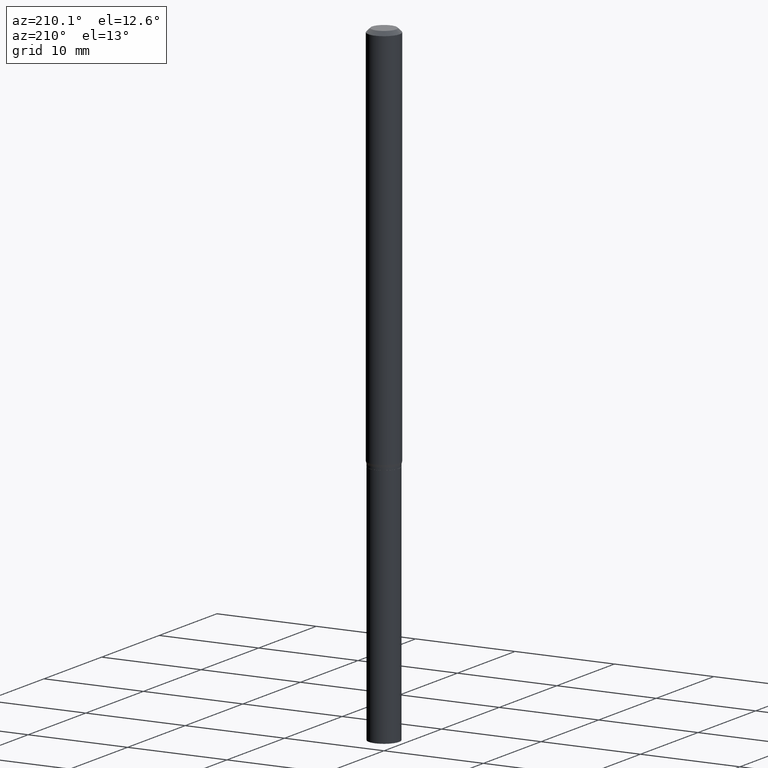
[diagram: clean part render]
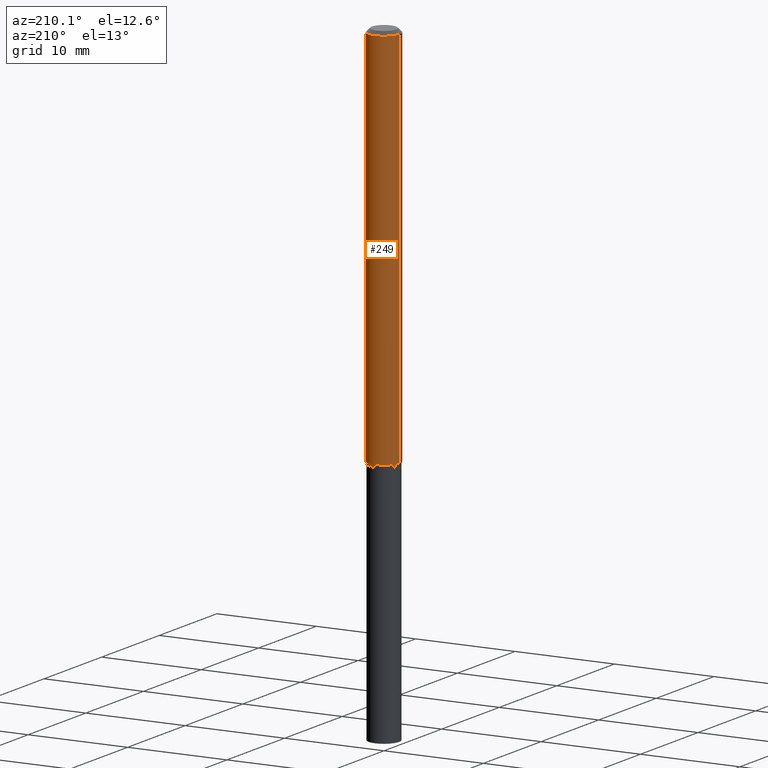
[diagram: same view with one face highlighted and labeled with its STEP entity id]
A machine part, auxiliary view. The second image highlights one B-rep face of the part: STEP entity #249.
In plain terms, the highlighted cylindrical surface (edge-blend (fillet) strip) has radius 1.5875 mm, axis along (-0, 0, 1).
Its self-contained STEP definition (entity closure, byte-faithful):
#1 = VERTEX_POINT ( 'NONE', #247 ) ;
#4 = ORIENTED_EDGE ( 'NONE', *, *, #102, .T. ) ;
#26 = ORIENTED_EDGE ( 'NONE', *, *, #440, .T. ) ;
#39 = VERTEX_POINT ( 'NONE', #435 ) ;
#58 = DIRECTION ( 'NONE',  ( 1.000000000000000000, -6.982962677686266711E-15, 4.876176775795935793E-29 ) ) ;
#61 = CARTESIAN_POINT ( 'NONE',  ( 0.06250000000000000000, -4.364351673553916694E-16, 3.047610484872459871E-30 ) ) ;
#65 = VECTOR ( 'NONE', #118, 39.37007874015748143 ) ;
#71 = DIRECTION ( 'NONE',  ( 1.000000000000000000, -6.982962677686262766E-15, 0.000000000000000000 ) ) ;
#78 = EDGE_CURVE ( 'NONE', #237, #39, #161, .T. ) ;
#83 = CARTESIAN_POINT ( 'NONE',  ( 0.000000000000000000, 0.000000000000000000, 0.000000000000000000 ) ) ;
#85 = DIRECTION ( 'NONE',  ( 1.000000000000000000, -6.982962677686266711E-15, 0.000000000000000000 ) ) ;
#87 = LINE ( 'NONE', #147, #65 ) ;
#89 = ORIENTED_EDGE ( 'NONE', *, *, #116, .F. ) ;
#102 = EDGE_CURVE ( 'NONE', #238, #39, #87, .T. ) ;
#116 = EDGE_CURVE ( 'NONE', #1, #237, #192, .T. ) ;
#118 = DIRECTION ( 'NONE',  ( -2.445468806185136877E-29, 3.491481338843145188E-15, 1.000000000000000000 ) ) ;
#145 = CARTESIAN_POINT ( 'NONE',  ( 0.06250000000000000000, -4.888073874380388472E-16, -0.01499999999999999944 ) ) ;
#147 = CARTESIAN_POINT ( 'NONE',  ( -0.06250000000000000000, 4.440892098500626162E-16, -3.074334431409316114E-30 ) ) ;
#156 = AXIS2_PLACEMENT_3D ( 'NONE', #83, #414, #58 ) ;
#160 = FACE_OUTER_BOUND ( 'NONE', #215, .T. ) ;
#161 = CIRCLE ( 'NONE', #220, 0.06250000000000000000 ) ;
#167 = CARTESIAN_POINT ( 'NONE',  ( 3.718750738880739679E-29, -5.309390484054409778E-15, -1.520669872981077697 ) ) ;
#182 = AXIS2_PLACEMENT_3D ( 'NONE', #167, #319, #71 ) ;
#192 = LINE ( 'NONE', #61, #347 ) ;
#215 = EDGE_LOOP ( 'NONE', ( #26, #4, #397, #89 ) ) ;
#220 = AXIS2_PLACEMENT_3D ( 'NONE', #264, #413, #85 ) ;
#229 = CARTESIAN_POINT ( 'NONE',  ( -0.06250000000000000000, -4.865301274204346373E-15, -1.520669872981077697 ) ) ;
#237 = VERTEX_POINT ( 'NONE', #145 ) ;
#238 = VERTEX_POINT ( 'NONE', #229 ) ;
#247 = CARTESIAN_POINT ( 'NONE',  ( 0.06250000000000000000, -5.745825651409801447E-15, -1.520669872981077697 ) ) ;
#249 = ADVANCED_FACE ( 'NONE', ( #160 ), #456, .T. ) ;
#264 = CARTESIAN_POINT ( 'NONE',  ( 3.668203209277705088E-31, -5.237222008264718399E-17, -0.01499999999999999944 ) ) ;
#319 = DIRECTION ( 'NONE',  ( -2.445468806185136597E-29, 3.491481338843145583E-15, 1.000000000000000000 ) ) ;
#325 = CIRCLE ( 'NONE', #182, 0.06250000000000000000 ) ;
#342 = DIRECTION ( 'NONE',  ( -2.445468806185136877E-29, 3.491481338843145188E-15, 1.000000000000000000 ) ) ;
#347 = VECTOR ( 'NONE', #342, 39.37007874015748143 ) ;
#397 = ORIENTED_EDGE ( 'NONE', *, *, #78, .F. ) ;
#413 = DIRECTION ( 'NONE',  ( -2.445468806185136597E-29, 3.491481338843145583E-15, 1.000000000000000000 ) ) ;
#414 = DIRECTION ( 'NONE',  ( -2.445468806185136597E-29, 3.491481338843145583E-15, 1.000000000000000000 ) ) ;
#435 = CARTESIAN_POINT ( 'NONE',  ( -0.06250000000000000000, -2.236792142218466010E-15, -0.01499999999999999944 ) ) ;
#440 = EDGE_CURVE ( 'NONE', #1, #238, #325, .T. ) ;
#456 = CYLINDRICAL_SURFACE ( 'NONE', #156, 0.06250000000000000000 ) ;